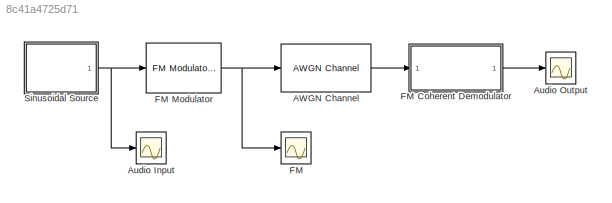
MODEL slx_8c41a4725d71
KIND model
BLOCK [Reference] AWGN Channel  REF=commchan3/AWGN
Channel
  EbNodB = 10
  EsNodB = 10
  InputProcessing = Inherited (this choice will be removed - see release notes)
  Ports = [1, 1]
  Ps = 1
  SNRdB = 10
  SourceBlock = commchan3/AWGN\nChannel
  SourceType = AWGN Channel
  Tsym = 1
  UserDataPersistent = on
  bitsPerSym = 1
  noiseMode = Variance from mask
  seed = randseed
  variance = 0
BLOCK [Scope] Audio Input
  DataFormat = StructureWithTime
  Floating = off
  MaxDataPoints = 8000
  NumInputPorts = 1
  Ports = [1]
  SampleTime = 0
  SaveName = ScopeData2
  ShowLegends = off
  TimeRange = 0.01
  YMax = 2
  YMin = -2
  ZoomMode = xonly
BLOCK [Scope] Audio Output
  DataFormat = StructureWithTime
  Floating = off
  MaxDataPoints = 8000
  NumInputPorts = 1
  Ports = [1]
  SampleTime = 0
  ShowLegends = off
  TimeRange = 0.01
  ZoomMode = xonly
BLOCK [Scope] FM
  DataFormat = StructureWithTime
  Floating = off
  MaxDataPoints = 8000
  NumInputPorts = 1
  Ports = [1]
  SampleTime = 0
  SaveName = ScopeData1
  ShowLegends = off
  TimeRange = 0.01
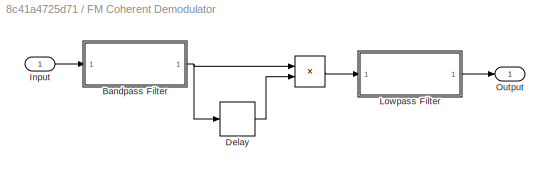
BLOCK [SubSystem] FM Coherent Demodulator
  Ports = [1, 1]
  RequestExecContextInheritance = off
BLOCK [Product] FM Coherent Demodulator/ 
  InputSameDT = off
  OutDataTypeStr = Inherit: Inherit via internal rule
  Ports = [2, 1]
  SaturateOnIntegerOverflow = off
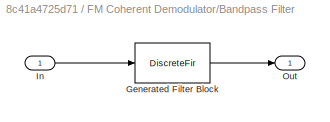
BLOCK [SubSystem] FM Coherent Demodulator/Bandpass Filter
  CopyFcn = fdesignblkfcn(gcbh, {'CopyFcn'});
  DialogController = fdesignblkfcn
  InitFcn = fdesignblkfcn(gcbh, {'InitFcn'});
  Ports = [1, 1]
  RequestExecContextInheritance = off
  UserDataPersistent = on
BLOCK [DiscreteFir] FM Coherent Demodulator/Bandpass Filter/Generated Filter Block
  Coefficients = [-0.00059219193775899236 -3.9341354639696544e-05 -9.7373474128287511e-05 -0.00017736431375222489 -0.00026084609867440677 -0.00032806948725862375 -0.00036584370866648712 -0.00036691313773533205 -0.00033370072449522692 -0.00027319008888497287 -0.00019739952351056374 -0.0001163690580661134 -3.9140781222203689e-05 3.181099127450536e-05 9.6227539820905477e-05 0.00016000023794347871 0.000227632677192881...<+11567ch>
  InputProcessing = Columns as channels (frame based)
  Ports = [1, 1]
  Tag = BlockMethodSubSystem
BLOCK [Inport] FM Coherent Demodulator/Bandpass Filter/In
  IconDisplay = Port number
BLOCK [Outport] FM Coherent Demodulator/Bandpass Filter/Out
  IconDisplay = Port number
BLOCK [Delay] FM Coherent Demodulator/Delay
  DelayLength = 10
  InputPortMap = u0
  Ports = [1, 1]
  SampleTime = 1.25e-6
BLOCK [Inport] FM Coherent Demodulator/Input
  IconDisplay = Port number
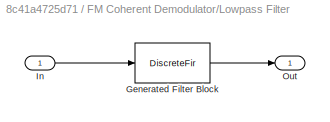
BLOCK [SubSystem] FM Coherent Demodulator/Lowpass Filter
  CopyFcn = fdesignblkfcn(gcbh, {'CopyFcn'});
  DialogController = fdesignblkfcn
  InitFcn = fdesignblkfcn(gcbh, {'InitFcn'});
  Ports = [1, 1]
  RequestExecContextInheritance = off
  UserDataPersistent = on
BLOCK [DiscreteFir] FM Coherent Demodulator/Lowpass Filter/Generated Filter Block
  Coefficients = [0.00049012927714864448 -0.00015443095771300157 -0.0001340205860285048 -0.00011821130629516578 -0.00010528394801493984 -9.5610857531854866e-05 -8.7711751957089885e-05 -8.2172421464364966e-05 -7.7663069831323075e-05 -7.492237786083252e-05 -7.2707485478572037e-05 -7.1877053134816347e-05 -7.1222715068964995e-05 -7.1713886448599145e-05 -7.2121420096729291e-05 -7.3555320270110884e-05 -7.465441846358415...<+36269ch>
  InputProcessing = Columns as channels (frame based)
  Ports = [1, 1]
  Tag = BlockMethodSubSystem
BLOCK [Inport] FM Coherent Demodulator/Lowpass Filter/In
  IconDisplay = Port number
BLOCK [Outport] FM Coherent Demodulator/Lowpass Filter/Out
  IconDisplay = Port number
BLOCK [Outport] FM Coherent Demodulator/Output
  IconDisplay = Port number
BLOCK [Reference] FM Modulator  REF=commanapbnd3/FM
Modulator
Passband
  Fc = 20000
  Kc = 500
  Ph = 0
  Ports = [1, 1]
  SourceBlock = commanapbnd3/FM\nModulator\nPassband
  SourceType = FM Modulator Passband
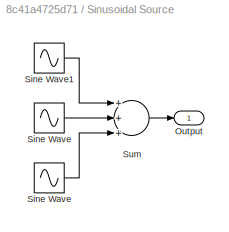
BLOCK [SubSystem] Sinusoidal Source
  Ports = [0, 1]
  RequestExecContextInheritance = off
BLOCK [Sin] Sinusoidal Source/ Sine Wave 
  Amplitude = 0.2
  Frequency = 5000*pi
  Ports = [0, 1]
  SampleTime = 1.25e-6
BLOCK [Outport] Sinusoidal Source/Output
  IconDisplay = Port number
BLOCK [Sin] Sinusoidal Source/Sine Wave 
  Amplitude = 0.5
  Frequency = 3000*pi
  Ports = [0, 1]
  SampleTime = 1.25e-6
BLOCK [Sin] Sinusoidal Source/Sine Wave1
  Frequency = 1000*pi
  Ports = [0, 1]
  SampleTime = 1.25e-6
BLOCK [Sum] Sinusoidal Source/Sum
  InputSameDT = off
  Inputs = +++
  OutDataTypeStr = Inherit: Inherit via internal rule
  Ports = [3, 1]
  SaturateOnIntegerOverflow = off
LINE AWGN Channel:1 -> FM Coherent Demodulator:1
LINE FM Coherent Demodulator/ :1 -> FM Coherent Demodulator/Lowpass Filter:1
NET FM Coherent Demodulator/Bandpass Filter:1 -> FM Coherent Demodulator/ :1, FM Coherent Demodulator/Delay:1
LINE FM Coherent Demodulator/Delay:1 -> FM Coherent Demodulator/ :2
LINE FM Coherent Demodulator/Input:1 -> FM Coherent Demodulator/Bandpass Filter:1
LINE FM Coherent Demodulator/Lowpass Filter:1 -> FM Coherent Demodulator/Output:1
LINE FM Coherent Demodulator:1 -> Audio Output:1
NET FM Modulator:1 -> AWGN Channel:1, FM:1
LINE Sinusoidal Source/ Sine Wave :1 -> Sinusoidal Source/Sum:3
LINE Sinusoidal Source/Sine Wave :1 -> Sinusoidal Source/Sum:2
LINE Sinusoidal Source/Sine Wave1:1 -> Sinusoidal Source/Sum:1
LINE Sinusoidal Source/Sum:1 -> Sinusoidal Source/Output:1
NET Sinusoidal Source:1 -> Audio Input:1, FM Modulator:1
note: NET lines group one-source signal fan-out (src -> all destinations, sorted); 1:1 wires keep LINE
